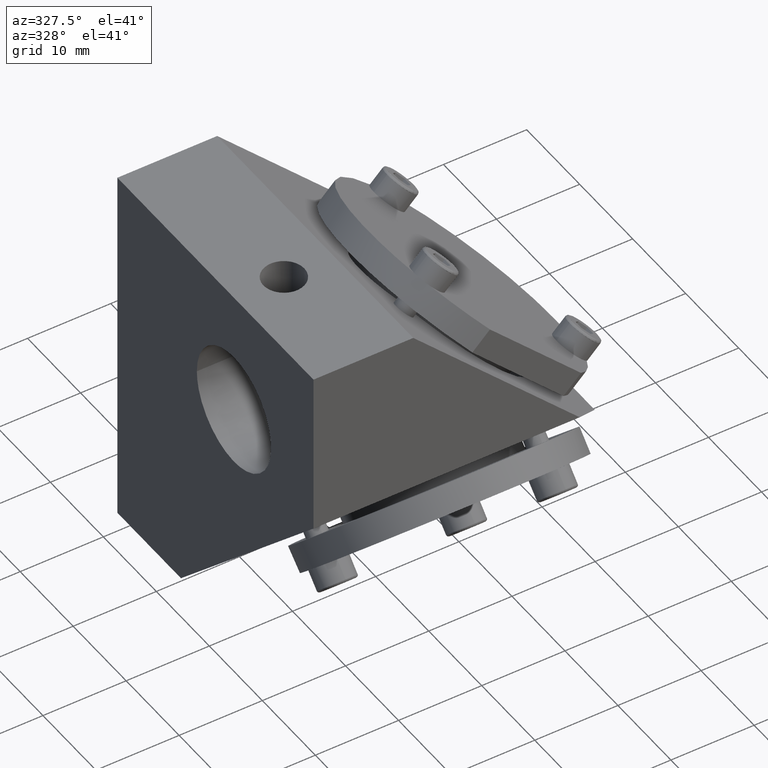
[diagram: clean part render]
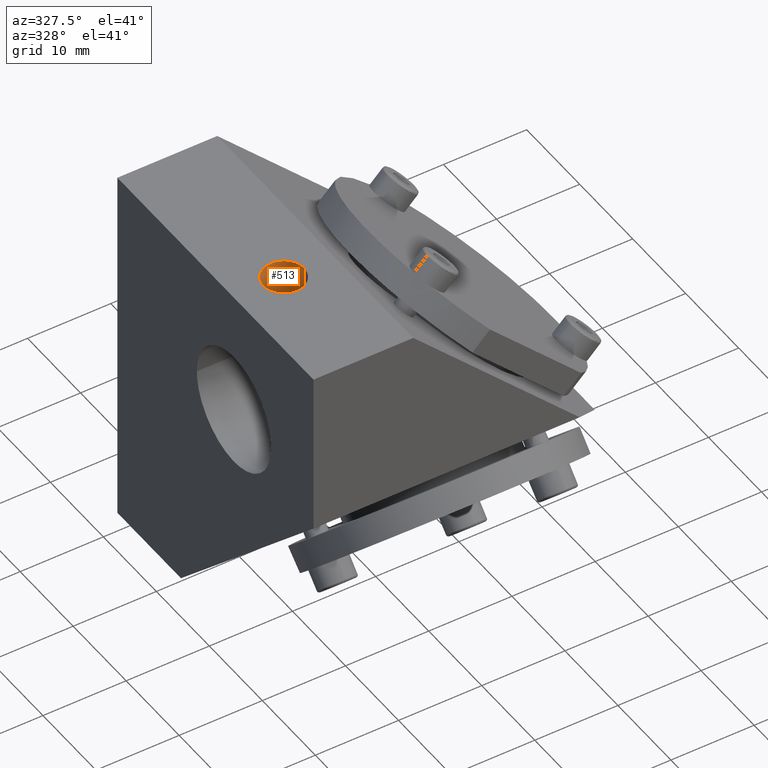
[diagram: same view with one face highlighted and labeled with its STEP entity id]
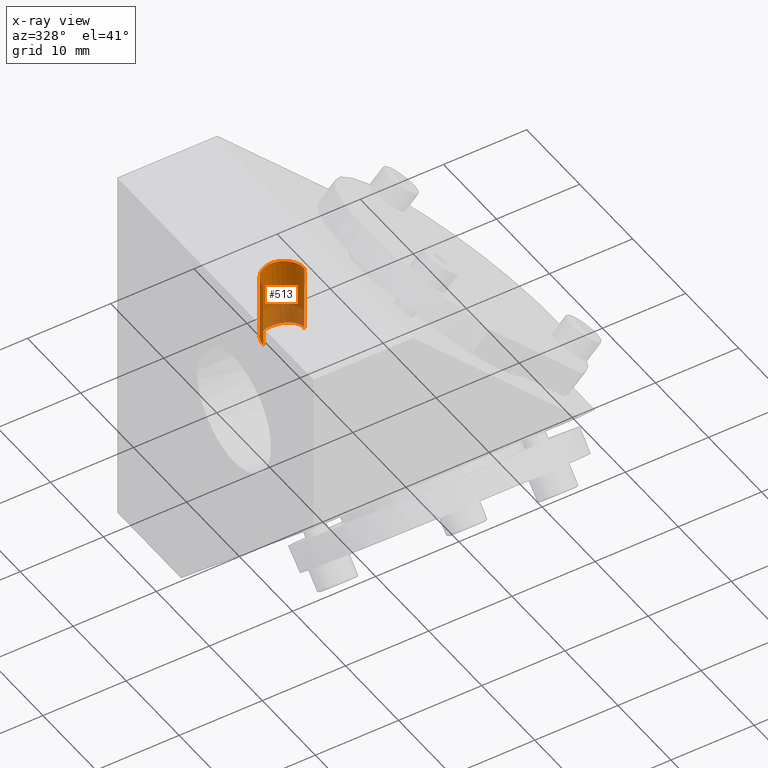
[diagram: x-ray of the same camera — body ghosted, the highlighted face saturated]
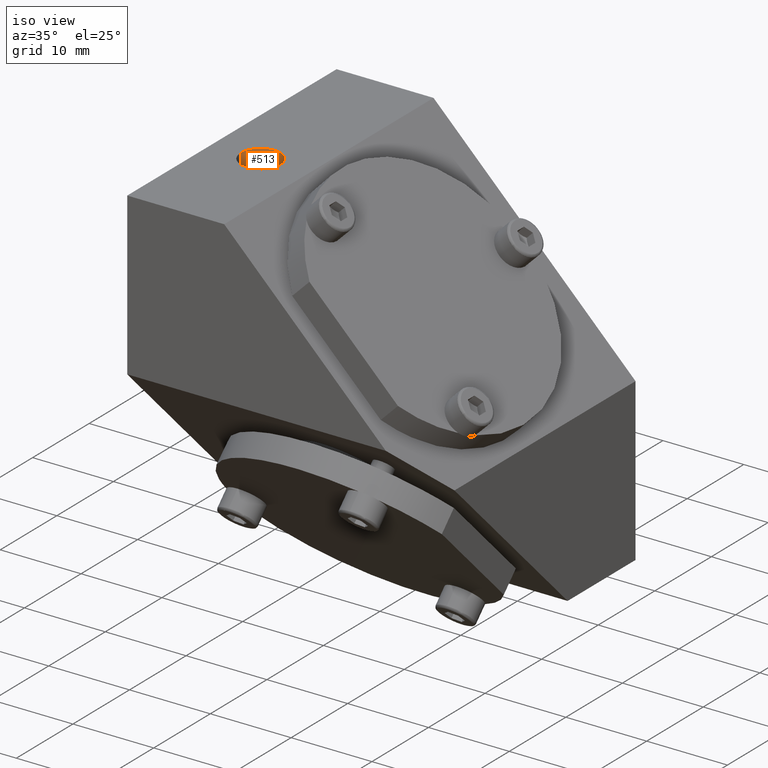
[diagram: same view with one face highlighted and labeled with its STEP entity id]
A machine part, auxiliary view. The second image highlights one B-rep face of the part: STEP entity #513.
The next image is the same camera in x-ray: the body ghosted, the highlighted face saturated — about 29% of this face is hidden behind the body in this view.
A second angle (iso view) of the same face is appended — the face is thin or edge-on in the first view.
In plain terms, the highlighted face is a freeform B-spline surface patch.
Its self-contained STEP definition (entity closure, byte-faithful):
#117=B_SPLINE_SURFACE_WITH_KNOTS('',1,1,((#15736,#15737),(#15738,#15739)),
 .UNSPECIFIED.,.F.,.F.,.F.,(2,2),(2,2),(-44.64,5.32907051820075E-15),(-3.5527136788005E-15,
14.64),.UNSPECIFIED.);
#513=ADVANCED_FACE('',(#763),#9210,.T.);
#763=FACE_OUTER_BOUND('',#1037,.T.);
#1037=EDGE_LOOP('',(#1963,#1964,#1965,#1966,#1967));
#1963=ORIENTED_EDGE('',*,*,#7528,.T.);
#1964=ORIENTED_EDGE('',*,*,#7529,.T.);
#1965=ORIENTED_EDGE('',*,*,#7526,.F.);
#1966=ORIENTED_EDGE('',*,*,#7525,.F.);
#1967=ORIENTED_EDGE('',*,*,#7530,.T.);
#3286=PCURVE('',#9209,#4616);
#3287=PCURVE('',#9209,#4617);
#3293=PCURVE('',#9210,#4623);
#3294=PCURVE('',#9210,#4624);
#3295=PCURVE('',#9210,#4625);
#3296=PCURVE('',#9210,#4626);
#3297=PCURVE('',#9210,#4627);
#3464=PCURVE('',#117,#4794);
#3504=PCURVE('',#9239,#4834);
#3506=PCURVE('',#9239,#4836);
#4616=DEFINITIONAL_REPRESENTATION('',(#5814),#23564);
#4617=DEFINITIONAL_REPRESENTATION('',(#5816),#23564);
#4623=DEFINITIONAL_REPRESENTATION('',(#5823),#23564);
#4624=DEFINITIONAL_REPRESENTATION('',(#5824),#23564);
#4625=DEFINITIONAL_REPRESENTATION('',(#5825),#23564);
#4626=DEFINITIONAL_REPRESENTATION('',(#5826),#23564);
#4627=DEFINITIONAL_REPRESENTATION('',(#5827),#23564);
#4794=DEFINITIONAL_REPRESENTATION('',(#8441),#23564);
#4834=DEFINITIONAL_REPRESENTATION('',(#6032),#23564);
#4836=DEFINITIONAL_REPRESENTATION('',(#6034),#23564);
#5813=B_SPLINE_CURVE_WITH_KNOTS('',3,(#19148,#19149,#19150,#19151,#19152,
#19153,#19154,#19155,#19156,#19157,#19158,#19159),.UNSPECIFIED.,.F.,.F.,
(4,2,2,2,2,4),(1.12120440242571,1.15769881114212,1.17866338926289,1.19962796738367,
1.2588339229396,1.49563964966596),.UNSPECIFIED.);
#5814=B_SPLINE_CURVE_WITH_KNOTS('',3,(#19160,#19161,#19162,#19163,#19164,
#19165,#19166,#19167,#19168,#19169),.UNSPECIFIED.,.F.,.F.,(4,3,3,4),(1.12120440242571,
1.17059065699887,1.31614960105876,1.49563964966596),.UNSPECIFIED.);
#5815=B_SPLINE_CURVE_WITH_KNOTS('',3,(#19170,#19171,#19172,#19173,#19174,
#19175,#19176,#19177,#19178,#19179,#19180,#19181),.UNSPECIFIED.,.F.,.F.,
(4,2,2,2,2,4),(0.,0.235899058077632,0.294884502461825,0.315892156830227,
0.336899811198629,0.373909912416492),.UNSPECIFIED.);
#5816=B_SPLINE_CURVE_WITH_KNOTS('',3,(#19182,#19183,#19184,#19185,#19186,
#19187,#19188,#19189,#19190,#19191),.UNSPECIFIED.,.F.,.F.,(4,3,3,4),(0.,
0.181161478223155,0.323839295153291,0.373909912416492),.UNSPECIFIED.);
#5823=B_SPLINE_CURVE_WITH_KNOTS('',1,(#19233,#19234),.UNSPECIFIED.,.F.,
 .F.,(2,2),(-7.72360553885051,0.),.UNSPECIFIED.);
#5824=B_SPLINE_CURVE_WITH_KNOTS('',1,(#19237,#19238),.UNSPECIFIED.,.F.,
 .F.,(2,2),(0.964593425803503,8.96459342580349),.UNSPECIFIED.);
#5825=B_SPLINE_CURVE_WITH_KNOTS('',3,(#19239,#19240,#19241,#19242,#19243,
#19244,#19245),.UNSPECIFIED.,.F.,.F.,(4,3,4),(0.,0.186924973418738,0.373909912416492),
 .UNSPECIFIED.);
#5826=B_SPLINE_CURVE_WITH_KNOTS('',3,(#19246,#19247,#19248,#19249,#19250,
#19251,#19252),.UNSPECIFIED.,.F.,.F.,(4,3,4),(1.12120440242571,1.30848948930076,
1.49563964966596),.UNSPECIFIED.);
#5827=B_SPLINE_CURVE_WITH_KNOTS('',1,(#19255,#19256),.UNSPECIFIED.,.F.,
 .F.,(2,2),(-8.96459343877056,-0.964593425803499),.UNSPECIFIED.);
#6032=B_SPLINE_CURVE_WITH_KNOTS('',1,(#21579,#21580),.UNSPECIFIED.,.F.,
 .F.,(2,2),(-8.96459343877056,-0.964593425803499),.UNSPECIFIED.);
#6034=B_SPLINE_CURVE_WITH_KNOTS('',1,(#21594,#21595),.UNSPECIFIED.,.F.,
 .F.,(2,2),(0.964593425803503,8.96459342580349),.UNSPECIFIED.);
#6815=SURFACE_CURVE('',#5813,(#3286,#3296),.PCURVE_S1.);
#6816=SURFACE_CURVE('',#5815,(#3287,#3295),.PCURVE_S1.);
#6818=SURFACE_CURVE('',#8368,(#3293,#3464),.PCURVE_S1.);
#6819=SURFACE_CURVE('',#8369,(#3294,#3506),.PCURVE_S1.);
#6820=SURFACE_CURVE('',#8370,(#3297,#3504),.PCURVE_S1.);
#7525=EDGE_CURVE('',#8933,#8934,#6815,.T.);
#7526=EDGE_CURVE('',#8934,#8932,#6816,.T.);
#7528=EDGE_CURVE('',#8935,#8936,#6818,.T.);
#7529=EDGE_CURVE('',#8936,#8932,#6819,.T.);
#7530=EDGE_CURVE('',#8933,#8935,#6820,.T.);
#8368=(
BOUNDED_CURVE()
B_SPLINE_CURVE(2,(#19228,#19229,#19230,#19231,#19232),.UNSPECIFIED.,.F.,
 .F.)
B_SPLINE_CURVE_WITH_KNOTS((3,2,3),(-7.72360553885051,-3.86180276942527,
0.),.UNSPECIFIED.)
CURVE()
GEOMETRIC_REPRESENTATION_ITEM()
RATIONAL_B_SPLINE_CURVE((1.,0.707106781186548,1.,0.707106781186548,1.))
REPRESENTATION_ITEM('')
);
#8369=(
BOUNDED_CURVE()
B_SPLINE_CURVE(1,(#19235,#19236),.UNSPECIFIED.,.F.,.F.)
B_SPLINE_CURVE_WITH_KNOTS((2,2),(0.964593425803503,8.96459342580349),
 .UNSPECIFIED.)
CURVE()
GEOMETRIC_REPRESENTATION_ITEM()
RATIONAL_B_SPLINE_CURVE((1.,1.))
REPRESENTATION_ITEM('')
);
#8370=(
BOUNDED_CURVE()
B_SPLINE_CURVE(1,(#19253,#19254),.UNSPECIFIED.,.F.,.F.)
B_SPLINE_CURVE_WITH_KNOTS((2,2),(-8.96459343877056,-0.964593425803499),
 .UNSPECIFIED.)
CURVE()
GEOMETRIC_REPRESENTATION_ITEM()
RATIONAL_B_SPLINE_CURVE((1.,1.))
REPRESENTATION_ITEM('')
);
#8441=(
BOUNDED_CURVE()
B_SPLINE_CURVE(2,(#21452,#21453,#21454,#21455,#21456),.UNSPECIFIED.,.F.,
 .F.)
B_SPLINE_CURVE_WITH_KNOTS((3,2,3),(-7.72360553885051,-3.86180276942525,
0.),.UNSPECIFIED.)
CURVE()
GEOMETRIC_REPRESENTATION_ITEM()
RATIONAL_B_SPLINE_CURVE((1.,0.707106781186548,1.,0.707106781186548,1.))
REPRESENTATION_ITEM('')
);
#8932=VERTEX_POINT('',#16098);
#8933=VERTEX_POINT('',#16099);
#8934=VERTEX_POINT('',#16100);
#8935=VERTEX_POINT('',#16101);
#8936=VERTEX_POINT('',#16102);
#9209=(
BOUNDED_SURFACE()
B_SPLINE_SURFACE(1,2,((#15330,#15331,#15332,#15333,#15334,#15335,#15336,
#15337,#15338),(#15339,#15340,#15341,#15342,#15343,#15344,#15345,#15346,
#15347)),.UNSPECIFIED.,.F.,.F.,.F.)
B_SPLINE_SURFACE_WITH_KNOTS((2,2),(3,2,2,2,3),(0.,26.6400000000001),(0.,
1.5707963267949,3.14159265358979,4.71238898038469,6.28318530717959),
 .UNSPECIFIED.)
GEOMETRIC_REPRESENTATION_ITEM()
RATIONAL_B_SPLINE_SURFACE(((1.,0.707106781186548,1.,0.707106781186548,1.,
0.707106781186548,1.,0.707106781186548,1.),(1.,0.707106781186548,1.,0.707106781186548,
1.,0.707106781186548,1.,0.707106781186548,1.)))
REPRESENTATION_ITEM('')
SURFACE()
);
#9210=(
BOUNDED_SURFACE()
B_SPLINE_SURFACE(1,2,((#15348,#15349,#15350,#15351,#15352),(#15353,#15354,
#15355,#15356,#15357)),.UNSPECIFIED.,.F.,.F.,.F.)
B_SPLINE_SURFACE_WITH_KNOTS((2,2),(3,2,3),(0.,10.375121109642),(-5.55111512312578E-17,
1.5707963267949,3.14159265358979),.UNSPECIFIED.)
GEOMETRIC_REPRESENTATION_ITEM()
RATIONAL_B_SPLINE_SURFACE(((1.,0.707106781186548,1.,0.707106781186547,1.),
(1.,0.707106781186548,1.,0.707106781186547,1.)))
REPRESENTATION_ITEM('')
SURFACE()
);
#9239=(
BOUNDED_SURFACE()
B_SPLINE_SURFACE(1,2,((#15810,#15811,#15812,#15813,#15814),(#15815,#15816,
#15817,#15818,#15819)),.UNSPECIFIED.,.F.,.F.,.F.)
B_SPLINE_SURFACE_WITH_KNOTS((2,2),(3,2,3),(0.,10.375121109642),(3.14159265358979,
4.71238898038469,6.28318530717959),.UNSPECIFIED.)
GEOMETRIC_REPRESENTATION_ITEM()
RATIONAL_B_SPLINE_SURFACE(((1.,0.707106781186548,1.,0.707106781186548,1.),
(1.,0.707106781186548,1.,0.707106781186548,1.)))
REPRESENTATION_ITEM('')
SURFACE()
);
#15330=CARTESIAN_POINT('',(-23.4398499790842,75.0024967772967,4.99999985320887));
#15331=CARTESIAN_POINT('',(-23.4398499790842,75.0024967772967,11.9999998532089));
#15332=CARTESIAN_POINT('',(-23.4398499790842,68.0024967772967,11.9999998532089));
#15333=CARTESIAN_POINT('',(-23.4398499790842,61.0024967772967,11.9999998532089));
#15334=CARTESIAN_POINT('',(-23.4398499790842,61.0024967772967,4.99999985320887));
#15335=CARTESIAN_POINT('',(-23.4398499790842,61.0024967772967,-2.00000014679113));
#15336=CARTESIAN_POINT('',(-23.4398499790842,68.0024967772967,-2.00000014679113));
#15337=CARTESIAN_POINT('',(-23.4398499790842,75.0024967772967,-2.00000014679113));
#15338=CARTESIAN_POINT('',(-23.4398499790842,75.0024967772967,4.99999985320887));
#15339=CARTESIAN_POINT('',(3.20015002091585,75.0024967772967,4.99999985320886));
#15340=CARTESIAN_POINT('',(3.20015002091586,75.0024967772967,11.9999998532088));
#15341=CARTESIAN_POINT('',(3.20015002091586,68.0024967772967,11.9999998532088));
#15342=CARTESIAN_POINT('',(3.20015002091586,61.0024967772967,11.9999998532088));
#15343=CARTESIAN_POINT('',(3.20015002091585,61.0024967772967,4.99999985320884));
#15344=CARTESIAN_POINT('',(3.20015002091585,61.0024967772967,-2.00000014679114));
#15345=CARTESIAN_POINT('',(3.20015002091585,68.0024967772967,-2.00000014679114));
#15346=CARTESIAN_POINT('',(3.20015002091585,75.0024967772967,-2.00000014679113));
#15347=CARTESIAN_POINT('',(3.20015002091585,75.0024967772967,4.99999985320886));
#15348=CARTESIAN_POINT('',(-17.5783499790842,83.9670902031003,4.99999985320887));
#15349=CARTESIAN_POINT('',(-17.5783499790842,83.9670902031003,2.54149985320887));
#15350=CARTESIAN_POINT('',(-15.1198499790842,83.9670902031003,2.54149985320887));
#15351=CARTESIAN_POINT('',(-12.6613499790842,83.9670902031003,2.54149985320887));
#15352=CARTESIAN_POINT('',(-12.6613499790842,83.9670902031003,4.99999985320888));
#15353=CARTESIAN_POINT('',(-17.5783499790842,73.5919690934583,4.99999985320887));
#15354=CARTESIAN_POINT('',(-17.5783499790842,73.5919690934583,2.54149985320886));
#15355=CARTESIAN_POINT('',(-15.1198499790842,73.5919690934583,2.54149985320886));
#15356=CARTESIAN_POINT('',(-12.6613499790842,73.5919690934583,2.54149985320885));
#15357=CARTESIAN_POINT('',(-12.6613499790842,73.5919690934583,4.99999985320887));
#15736=CARTESIAN_POINT('',(-22.4398499790842,83.0024967772968,-20.8200001467911));
#15737=CARTESIAN_POINT('',(-7.79984997908418,83.0024967772968,-20.8200001467911));
#15738=CARTESIAN_POINT('',(-22.4398499790842,83.0024967772968,23.8199998532089));
#15739=CARTESIAN_POINT('',(-7.79984997908418,83.0024967772968,23.8199998532089));
#15810=CARTESIAN_POINT('',(-12.6613499790842,83.9670902031003,4.99999985320887));
#15811=CARTESIAN_POINT('',(-12.6613499790842,83.9670902031003,7.45849985320887));
#15812=CARTESIAN_POINT('',(-15.1198499790842,83.9670902031003,7.45849985320887));
#15813=CARTESIAN_POINT('',(-17.5783499790842,83.9670902031003,7.45849985320887));
#15814=CARTESIAN_POINT('',(-17.5783499790842,83.9670902031003,4.99999985320887));
#15815=CARTESIAN_POINT('',(-12.6613499790842,73.5919690934583,4.99999985320886));
#15816=CARTESIAN_POINT('',(-12.6613499790842,73.5919690934583,7.45849985320887));
#15817=CARTESIAN_POINT('',(-15.1198499790842,73.5919690934583,7.45849985320887));
#15818=CARTESIAN_POINT('',(-17.5783499790842,73.5919690934583,7.45849985320887));
#15819=CARTESIAN_POINT('',(-17.5783499790842,73.5919690934583,4.99999985320887));
#16098=CARTESIAN_POINT('',(-17.5783499790842,75.0024967772967,4.99999985320887));
#16099=CARTESIAN_POINT('',(-12.6613499790842,75.0024967772967,4.99999985320887));
#16100=CARTESIAN_POINT('',(-15.1198499790842,74.5565625192618,2.54149985320887));
#16101=CARTESIAN_POINT('',(-12.6613499790842,83.0024967772968,4.99999985320887));
#16102=CARTESIAN_POINT('',(-17.5783499790842,83.0024967772968,4.99999985320887));
#19148=CARTESIAN_POINT('',(-12.6613499790842,75.0024967772967,4.99999985320887));
#19149=CARTESIAN_POINT('',(-12.6593004757041,75.0024967772967,4.25245413330954));
#19150=CARTESIAN_POINT('',(-13.0057236075624,74.886247899961,3.70088099468669));
#19151=CARTESIAN_POINT('',(-13.3462803741076,74.7907341307561,3.28414207128408));
#19152=CARTESIAN_POINT('',(-13.3871989256292,74.7815091738312,3.25462499276477));
#19153=CARTESIAN_POINT('',(-13.4614950450399,74.7628667413147,3.18375636032519));
#19154=CARTESIAN_POINT('',(-13.498659847723,74.7537799498521,3.150337896322));
#19155=CARTESIAN_POINT('',(-13.640851850433,74.7201024805303,3.02963492116237));
#19156=CARTESIAN_POINT('',(-13.7460072385588,74.6975386302855,2.95529488809762));
#19157=CARTESIAN_POINT('',(-14.2726688149262,74.5976244256814,2.63891081292423));
#19158=CARTESIAN_POINT('',(-14.6961826599104,74.5565676992545,2.54151366244739));
#19159=CARTESIAN_POINT('',(-15.1198499790842,74.5565625192618,2.54149985320887));
#19160=CARTESIAN_POINT('',(10.7785,6.28318530717959));
#19161=CARTESIAN_POINT('',(10.7812731990542,6.12266700142078));
#19162=CARTESIAN_POINT('',(10.1458887484527,6.02988944820548));
#19163=CARTESIAN_POINT('',(10.0584088749984,6.01678599995747));
#19164=CARTESIAN_POINT('',(9.80057442052213,5.97816545448366));
#19165=CARTESIAN_POINT('',(9.54196317527717,5.95462661152373));
#19166=CARTESIAN_POINT('',(9.28202827065942,5.93778172883697));
#19167=CARTESIAN_POINT('',(8.96150019204577,5.91701015185312));
#19168=CARTESIAN_POINT('',(8.64112426659496,5.90840921770083));
#19169=CARTESIAN_POINT('',(8.32000000000002,5.90840763263666));
#19170=CARTESIAN_POINT('',(-15.1198499790842,74.5565625192618,2.54149985320887));
#19171=CARTESIAN_POINT('',(-15.5434821812828,74.5565625192618,2.54149985320887));
#19172=CARTESIAN_POINT('',(-15.9669284763939,74.5980368846523,2.64017590011866));
#19173=CARTESIAN_POINT('',(-16.4935433260535,74.6975606605013,2.95537492856024));
#19174=CARTESIAN_POINT('',(-16.5986928050193,74.7200940157504,3.02960155964561));
#19175=CARTESIAN_POINT('',(-16.7410877306848,74.7538564307714,3.15061308858369));
#19176=CARTESIAN_POINT('',(-16.7784642134342,74.7630132922967,3.18429529307329));
#19177=CARTESIAN_POINT('',(-16.8531826024881,74.7818134229114,3.25580020357688));
#19178=CARTESIAN_POINT('',(-16.8951902242473,74.7912969205001,3.28669547682392));
#19179=CARTESIAN_POINT('',(-17.2335334221875,74.8853695649913,3.69687714939654));
#19180=CARTESIAN_POINT('',(-17.5783499790842,75.0024967772967,4.24321311395734));
#19181=CARTESIAN_POINT('',(-17.5783499790842,75.0024967772967,4.99999985320887));
#19182=CARTESIAN_POINT('',(8.32000000000002,5.90840763263666));
#19183=CARTESIAN_POINT('',(7.99466662818141,5.90840763263666));
#19184=CARTESIAN_POINT('',(7.67012273655779,5.91764682691451));
#19185=CARTESIAN_POINT('',(7.34542015359504,5.93879102710775));
#19186=CARTESIAN_POINT('',(7.08969329519727,5.95544361988792));
#19187=CARTESIAN_POINT('',(6.83528079032811,5.97874219312248));
#19188=CARTESIAN_POINT('',(6.5816352547849,6.01685975175477));
#19189=CARTESIAN_POINT('',(6.4926221986283,6.03023653120338));
#19190=CARTESIAN_POINT('',(5.86150000000001,6.12072658788206));
#19191=CARTESIAN_POINT('',(5.86150000000001,6.28318530717959));
#19228=CARTESIAN_POINT('',(-12.6613499790842,83.0024967772968,4.99999985320887));
#19229=CARTESIAN_POINT('',(-12.6613499790842,83.0024967772968,2.54149985320887));
#19230=CARTESIAN_POINT('',(-15.1198499790842,83.0024967772968,2.54149985320887));
#19231=CARTESIAN_POINT('',(-17.5783499790842,83.0024967772968,2.54149985320887));
#19232=CARTESIAN_POINT('',(-17.5783499790842,83.0024967772968,4.99999985320887));
#19233=CARTESIAN_POINT('',(0.96459342580353,3.14159265358979));
#19234=CARTESIAN_POINT('',(0.96459342580349,1.66533453693773E-16));
#19235=CARTESIAN_POINT('',(-17.5783499790842,83.0024967772968,4.99999985320887));
#19236=CARTESIAN_POINT('',(-17.5783499790842,75.0024967772967,4.99999985320887));
#19237=CARTESIAN_POINT('',(0.96459342580349,1.66533453693773E-16));
#19238=CARTESIAN_POINT('',(8.9645934258035,-5.55111512312578E-17));
#19239=CARTESIAN_POINT('',(9.4105276838385,1.5707963267949));
#19240=CARTESIAN_POINT('',(9.4105276838385,1.27738392570307));
#19241=CARTESIAN_POINT('',(9.30273163567579,1.03815367834229));
#19242=CARTESIAN_POINT('',(9.18390835348868,0.785429411765074));
#19243=CARTESIAN_POINT('',(9.06504695276241,0.532624071178865));
#19244=CARTESIAN_POINT('',(8.9645934258035,0.291485744897986));
#19245=CARTESIAN_POINT('',(8.9645934258035,-5.55111512312578E-17));
#19246=CARTESIAN_POINT('',(8.96459342580361,3.14159265358979));
#19247=CARTESIAN_POINT('',(8.96470496393535,2.85018058502267));
#19248=CARTESIAN_POINT('',(9.06468221079549,2.60885924149133));
#19249=CARTESIAN_POINT('',(9.18366514954327,2.35601569383023));
#19250=CARTESIAN_POINT('',(9.30256236895841,2.10335430321108));
#19251=CARTESIAN_POINT('',(9.41046220946186,1.86419842632121));
#19252=CARTESIAN_POINT('',(9.4105276838385,1.5707963267949));
#19253=CARTESIAN_POINT('',(-12.6613499790842,75.0024967772967,4.99999985320887));
#19254=CARTESIAN_POINT('',(-12.6613499790842,83.0024967772968,4.99999985320887));
#19255=CARTESIAN_POINT('',(8.96459342580361,3.14159265358979));
#19256=CARTESIAN_POINT('',(0.96459342580353,3.14159265358979));
#21452=CARTESIAN_POINT('',(-18.82,9.7785));
#21453=CARTESIAN_POINT('',(-21.2785,9.7785));
#21454=CARTESIAN_POINT('',(-21.2785,7.32));
#21455=CARTESIAN_POINT('',(-21.2785,4.8615));
#21456=CARTESIAN_POINT('',(-18.82,4.8615));
#21579=CARTESIAN_POINT('',(8.96459342580361,3.14159265358979));
#21580=CARTESIAN_POINT('',(0.964593425803518,3.14159265358979));
#21594=CARTESIAN_POINT('',(0.96459342580349,6.28318530717959));
#21595=CARTESIAN_POINT('',(8.9645934258035,6.28318530717959));
#23564=(
GEOMETRIC_REPRESENTATION_CONTEXT(2)
PARAMETRIC_REPRESENTATION_CONTEXT()
REPRESENTATION_CONTEXT('pspace','')
);